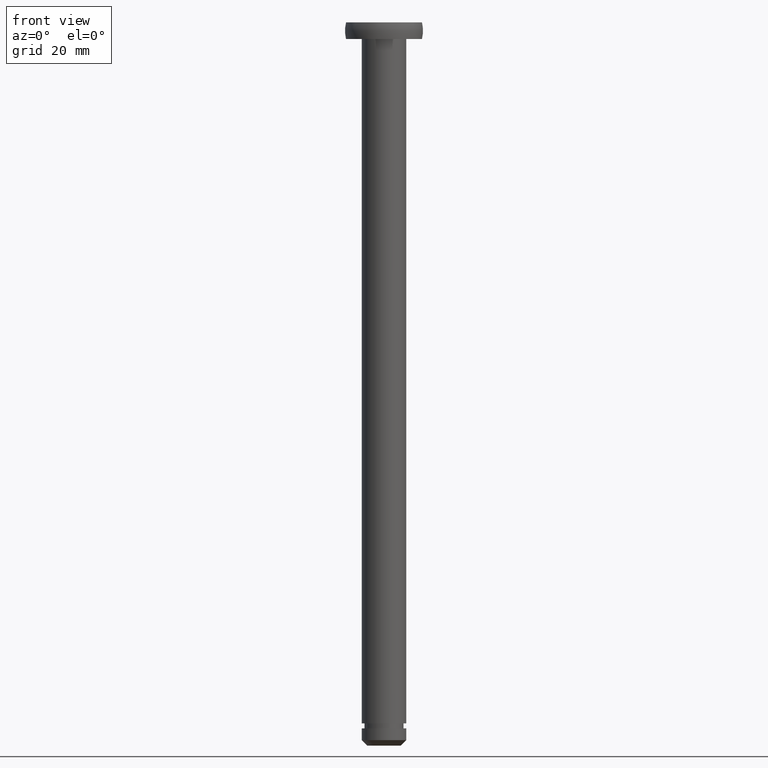
[diagram: clean part render]
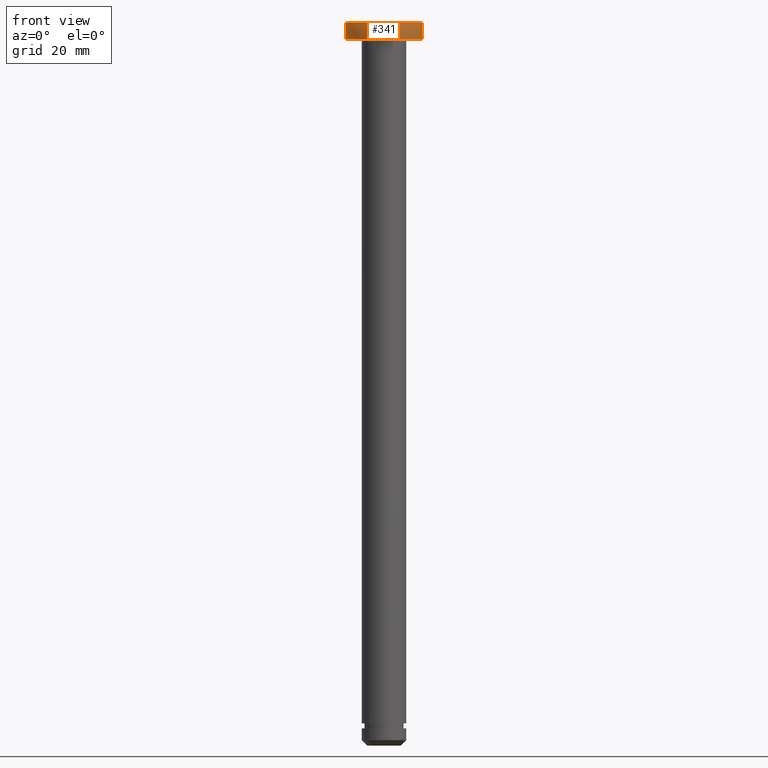
[diagram: same view with one face highlighted and labeled with its STEP entity id]
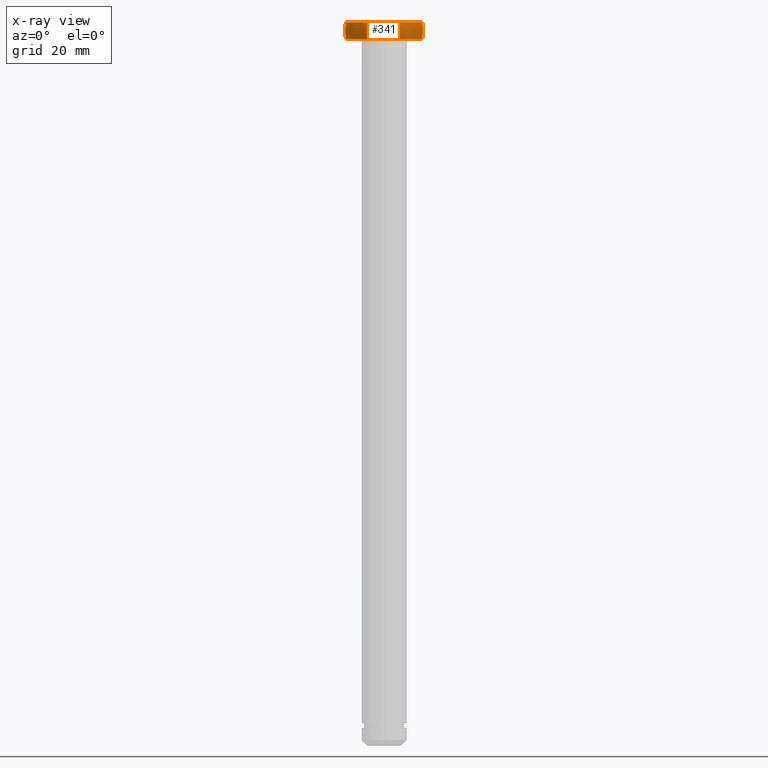
[diagram: x-ray of the same camera — body ghosted, the highlighted face saturated]
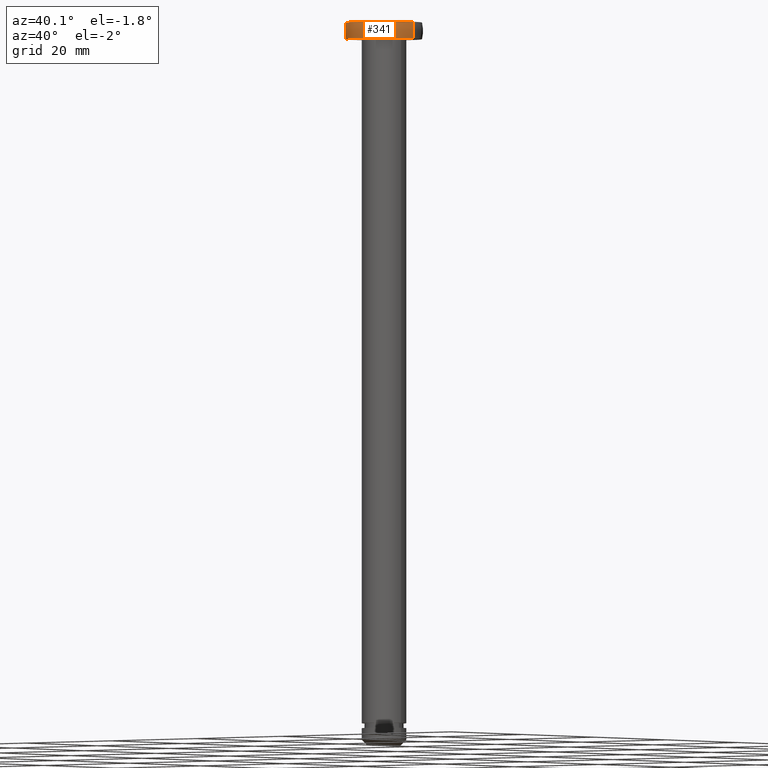
[diagram: same view with one face highlighted and labeled with its STEP entity id]
A machine part, front view. The second image highlights one B-rep face of the part: STEP entity #341.
The next image is the same camera in x-ray: the body ghosted, the highlighted face saturated — about 0% of this face is hidden behind the body in this view.
A second angle (auxiliary view) of the same face is appended — the face is thin or edge-on in the first view.
In plain terms, the highlighted toroidal blend (fillet) surface has major radius 0.3572 mm and minor (blend) radius 6.6428 mm.
Its self-contained STEP definition (entity closure, byte-faithful):
#6 = VERTEX_POINT ( 'NONE', #292 ) ;
#7 = CARTESIAN_POINT ( 'NONE',  ( -0.3572332087698980000, 0.0000000000000000000, -1.500000009021705200 ) ) ;
#20 = AXIS2_PLACEMENT_3D ( 'NONE', #265, #199, #33 ) ;
#33 = DIRECTION ( 'NONE',  ( -1.000000000000000000, 0.0000000000000000000, 0.0000000000000000000 ) ) ;
#78 = VERTEX_POINT ( 'NONE', #380 ) ;
#81 = VERTEX_POINT ( 'NONE', #119 ) ;
#86 = TOROIDAL_SURFACE ( 'NONE', #20, 0.3572332087698980000, 6.642766791230087600 ) ;
#100 = ORIENTED_EDGE ( 'NONE', *, *, #344, .F. ) ;
#119 = CARTESIAN_POINT ( 'NONE',  ( 6.828427118366800400, 8.362411413718889200E-016, -3.000000018043434700 ) ) ;
#127 = VERTEX_POINT ( 'NONE', #187 ) ;
#129 = EDGE_CURVE ( 'NONE', #81, #6, #145, .T. ) ;
#143 = CIRCLE ( 'NONE', #442, 6.642766791230087600 ) ;
#145 = CIRCLE ( 'NONE', #273, 6.828427118366800400 ) ;
#152 = DIRECTION ( 'NONE',  ( -1.000000000000000000, 0.0000000000000000000, 0.0000000000000000000 ) ) ;
#154 = DIRECTION ( 'NONE',  ( 0.0000000000000000000, 0.0000000000000000000, -1.000000000000000000 ) ) ;
#164 = CARTESIAN_POINT ( 'NONE',  ( 0.0000000000000000000, 0.0000000000000000000, 5.243895595530290800E-014 ) ) ;
#179 = DIRECTION ( 'NONE',  ( -1.000000000000000000, -1.224646799147353200E-016, 0.0000000000000000000 ) ) ;
#184 = DIRECTION ( 'NONE',  ( -1.224646799147353200E-016, 1.000000000000000000, 0.0000000000000000000 ) ) ;
#187 = CARTESIAN_POINT ( 'NONE',  ( 6.828427118366800400, 8.362411413718889200E-016, 5.243895595530290800E-014 ) ) ;
#195 = ORIENTED_EDGE ( 'NONE', *, *, #129, .F. ) ;
#198 = CARTESIAN_POINT ( 'NONE',  ( 0.3572332087698980000, 4.374845056691938000E-017, -1.500000009021705200 ) ) ;
#199 = DIRECTION ( 'NONE',  ( 0.0000000000000000000, 0.0000000000000000000, -1.000000000000000000 ) ) ;
#209 = EDGE_CURVE ( 'NONE', #127, #78, #363, .T. ) ;
#213 = CIRCLE ( 'NONE', #352, 6.642766791230087600 ) ;
#221 = ORIENTED_EDGE ( 'NONE', *, *, #312, .T. ) ;
#265 = CARTESIAN_POINT ( 'NONE',  ( 0.0000000000000000000, 0.0000000000000000000, -1.500000009021705200 ) ) ;
#273 = AXIS2_PLACEMENT_3D ( 'NONE', #453, #449, #441 ) ;
#292 = CARTESIAN_POINT ( 'NONE',  ( -6.828427118366800400, 0.0000000000000000000, -3.000000018043434700 ) ) ;
#301 = ORIENTED_EDGE ( 'NONE', *, *, #209, .T. ) ;
#305 = AXIS2_PLACEMENT_3D ( 'NONE', #164, #154, #152 ) ;
#312 = EDGE_CURVE ( 'NONE', #78, #6, #213, .T. ) ;
#341 = ADVANCED_FACE ( 'NONE', ( #421 ), #86, .T. ) ;
#344 = EDGE_CURVE ( 'NONE', #127, #81, #143, .T. ) ;
#352 = AXIS2_PLACEMENT_3D ( 'NONE', #7, #443, #412 ) ;
#363 = CIRCLE ( 'NONE', #305, 6.828427118366800400 ) ;
#380 = CARTESIAN_POINT ( 'NONE',  ( -6.828427118366800400, 0.0000000000000000000, 5.243895595530290800E-014 ) ) ;
#396 = EDGE_LOOP ( 'NONE', ( #100, #301, #221, #195 ) ) ;
#412 = DIRECTION ( 'NONE',  ( 0.0000000000000000000, 0.0000000000000000000, -1.000000000000000000 ) ) ;
#421 = FACE_OUTER_BOUND ( 'NONE', #396, .T. ) ;
#441 = DIRECTION ( 'NONE',  ( -1.000000000000000000, 0.0000000000000000000, 0.0000000000000000000 ) ) ;
#442 = AXIS2_PLACEMENT_3D ( 'NONE', #198, #184, #179 ) ;
#443 = DIRECTION ( 'NONE',  ( -0.0000000000000000000, -1.000000000000000000, -0.0000000000000000000 ) ) ;
#449 = DIRECTION ( 'NONE',  ( 0.0000000000000000000, 0.0000000000000000000, -1.000000000000000000 ) ) ;
#453 = CARTESIAN_POINT ( 'NONE',  ( 0.0000000000000000000, 0.0000000000000000000, -3.000000018043434700 ) ) ;